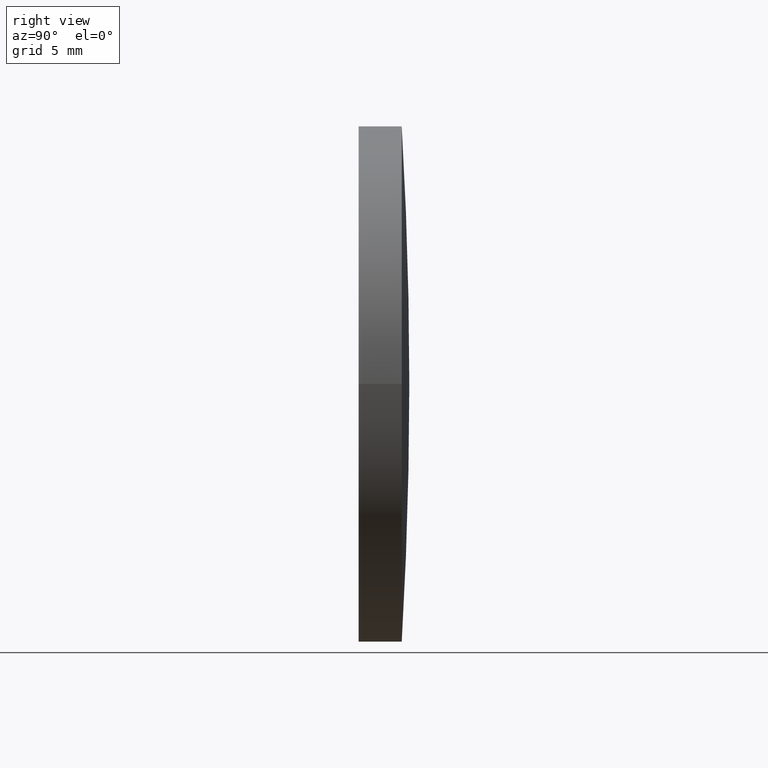
[diagram: clean part render]
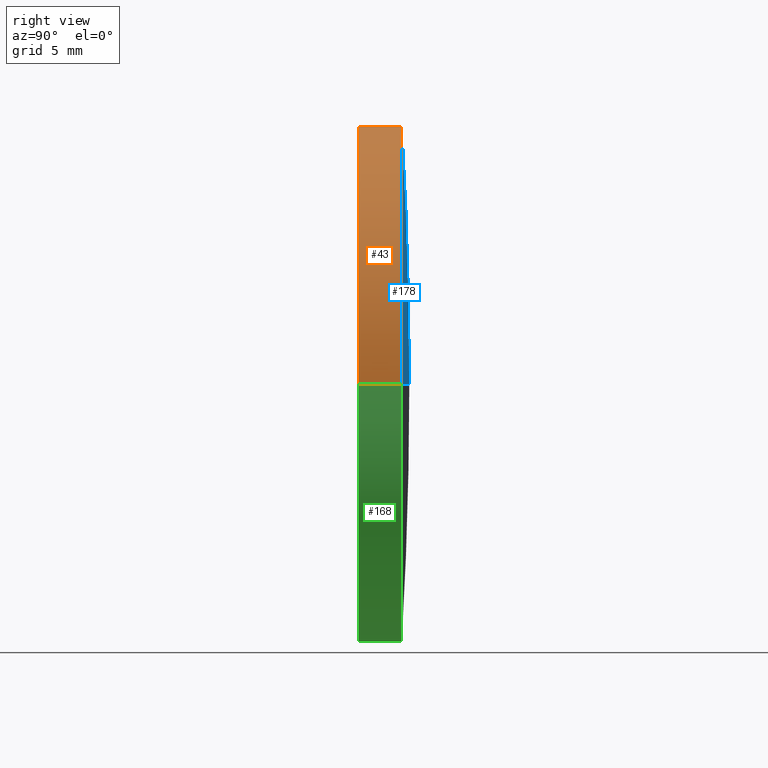
[diagram: same view with three faces highlighted in distinct colors, each labeled with its STEP entity id]
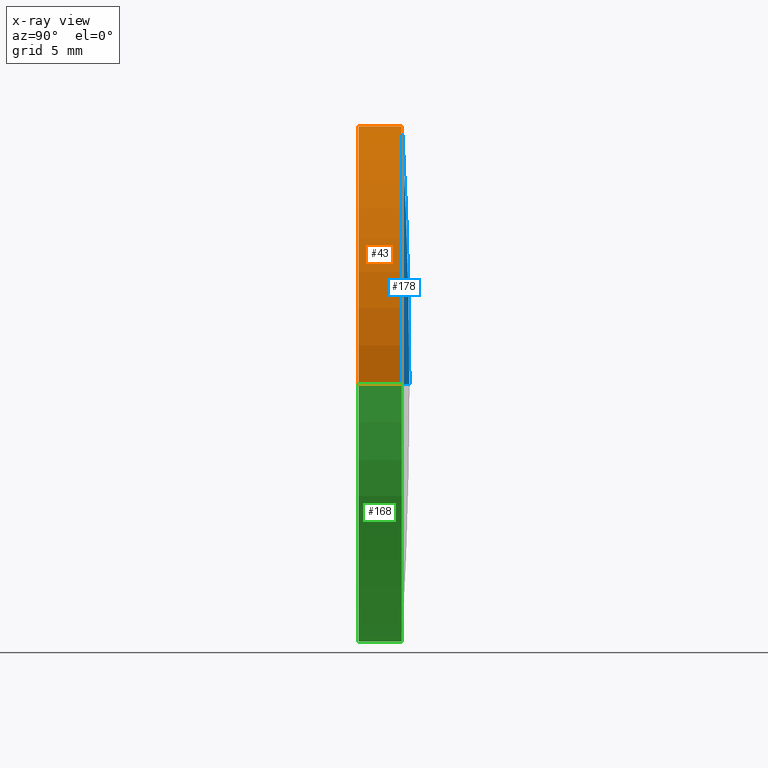
[diagram: x-ray of the same camera — body ghosted, the three highlighted faces saturated]
A machine part, right view with three faces highlighted in distinct colors.
The next image is the same camera in x-ray (body ghosted, the three faces saturated) — at least one of them is partly hidden behind the body in this view.
Their STEP definitions:

[orange] entity #43 — the highlighted cylindrical surface (partial cylindrical patch) has radius 15 mm, axis along (0, 1, -0).
#12 = CARTESIAN_POINT ( 'NONE',  ( 5.265981236333619456E-17, 2.939999999999999947, 0.000000000000000000 ) ) ;
#13 = ORIENTED_EDGE ( 'NONE', *, *, #56, .F. ) ;
#16 = EDGE_CURVE ( 'NONE', #72, #172, #108, .T. ) ;
#24 = EDGE_CURVE ( 'NONE', #152, #117, #91, .T. ) ;
#30 = CARTESIAN_POINT ( 'NONE',  ( 14.99999999999983302, 2.500000000000027534, 1.836970198721009079E-15 ) ) ;
#40 = DIRECTION ( 'NONE',  ( 1.791150080385584967E-17, 1.000000000000000000, -0.000000000000000000 ) ) ;
#43 = ADVANCED_FACE ( 'NONE', ( #102 ), #155, .T. ) ;
#44 = DIRECTION ( 'NONE',  ( -1.000000000000000000, 1.791150080385585583E-17, 0.000000000000000000 ) ) ;
#46 = CARTESIAN_POINT ( 'NONE',  ( 15.00000000000000000, 2.939999999999999503, 1.836970198721029589E-15 ) ) ;
#56 = EDGE_CURVE ( 'NONE', #152, #72, #77, .T. ) ;
#57 = AXIS2_PLACEMENT_3D ( 'NONE', #12, #74, #192 ) ;
#65 = CARTESIAN_POINT ( 'NONE',  ( -15.00000000000000000, -1.899731832913170901E-15, 0.000000000000000000 ) ) ;
#69 = AXIS2_PLACEMENT_3D ( 'NONE', #187, #40, #99 ) ;
#72 = VERTEX_POINT ( 'NONE', #179 ) ;
#74 = DIRECTION ( 'NONE',  ( 1.791150080385584967E-17, 1.000000000000000000, -0.000000000000000000 ) ) ;
#75 = CARTESIAN_POINT ( 'NONE',  ( -15.00000000000000000, 2.940000000000000391, 0.000000000000000000 ) ) ;
#76 = DIRECTION ( 'NONE',  ( 1.791150080385584967E-17, 1.000000000000000000, -0.000000000000000000 ) ) ;
#77 = LINE ( 'NONE', #75, #167 ) ;
#85 = EDGE_LOOP ( 'NONE', ( #189, #173, #124, #13 ) ) ;
#91 = CIRCLE ( 'NONE', #96, 15.00000000000000000 ) ;
#96 = AXIS2_PLACEMENT_3D ( 'NONE', #191, #166, #44 ) ;
#99 = DIRECTION ( 'NONE',  ( -1.000000000000000000, 2.891205793294678696E-17, 0.000000000000000000 ) ) ;
#102 = FACE_OUTER_BOUND ( 'NONE', #85, .T. ) ;
#108 = CIRCLE ( 'NONE', #69, 15.00000000000000000 ) ;
#115 = EDGE_CURVE ( 'NONE', #117, #172, #145, .T. ) ;
#117 = VERTEX_POINT ( 'NONE', #177 ) ;
#124 = ORIENTED_EDGE ( 'NONE', *, *, #16, .F. ) ;
#145 = LINE ( 'NONE', #46, #146 ) ;
#146 = VECTOR ( 'NONE', #76, 1000.000000000000000 ) ;
#147 = DIRECTION ( 'NONE',  ( 1.791150080385584967E-17, 1.000000000000000000, -0.000000000000000000 ) ) ;
#152 = VERTEX_POINT ( 'NONE', #65 ) ;
#155 = CYLINDRICAL_SURFACE ( 'NONE', #57, 15.00000000000000000 ) ;
#166 = DIRECTION ( 'NONE',  ( 1.791150080385584967E-17, 1.000000000000000000, -0.000000000000000000 ) ) ;
#167 = VECTOR ( 'NONE', #147, 1000.000000000000000 ) ;
#172 = VERTEX_POINT ( 'NONE', #30 ) ;
#173 = ORIENTED_EDGE ( 'NONE', *, *, #115, .T. ) ;
#177 = CARTESIAN_POINT ( 'NONE',  ( 15.00000000000000000, -2.437076857028846835E-15, 1.836970198721029589E-15 ) ) ;
#179 = CARTESIAN_POINT ( 'NONE',  ( -14.99999999999983125, 2.500000000000028422, 0.000000000000000000 ) ) ;
#187 = CARTESIAN_POINT ( 'NONE',  ( 4.477875200963958719E-17, 2.499999999999997780, 0.000000000000000000 ) ) ;
#189 = ORIENTED_EDGE ( 'NONE', *, *, #24, .T. ) ;
#191 = CARTESIAN_POINT ( 'NONE',  ( -4.212971753347078429E-32, -2.168404344971008868E-15, 0.000000000000000000 ) ) ;
#192 = DIRECTION ( 'NONE',  ( -1.000000000000000000, 2.891205793294678696E-17, 0.000000000000000000 ) ) ;

[blue] entity #178 — the highlighted toroidal blend (fillet) surface has major radius 0.0668 mm and minor (blend) radius 258.18 mm.
#9 = EDGE_CURVE ( 'NONE', #72, #27, #133, .T. ) ;
#10 = DIRECTION ( 'NONE',  ( -0.000000000000000000, 0.000000000000000000, -1.000000000000000000 ) ) ;
#16 = EDGE_CURVE ( 'NONE', #72, #172, #108, .T. ) ;
#17 = CARTESIAN_POINT ( 'NONE',  ( -4.567201651595187428E-15, -255.2399913514417733, 0.000000000000000000 ) ) ;
#19 = DIRECTION ( 'NONE',  ( -1.224646799147353207E-16, 2.193526212736731115E-33, 1.000000000000000000 ) ) ;
#20 = CIRCLE ( 'NONE', #120, 258.1800000000000068 ) ;
#26 = CARTESIAN_POINT ( 'NONE',  ( 5.265981236333619456E-17, 2.939999999999999947, 0.000000000000000000 ) ) ;
#27 = VERTEX_POINT ( 'NONE', #26 ) ;
#28 = ORIENTED_EDGE ( 'NONE', *, *, #16, .T. ) ;
#30 = CARTESIAN_POINT ( 'NONE',  ( 14.99999999999983302, 2.500000000000027534, 1.836970198721009079E-15 ) ) ;
#38 = ORIENTED_EDGE ( 'NONE', *, *, #188, .T. ) ;
#40 = DIRECTION ( 'NONE',  ( 1.791150080385584967E-17, 1.000000000000000000, -0.000000000000000000 ) ) ;
#41 = AXIS2_PLACEMENT_3D ( 'NONE', #58, #10, #121 ) ;
#48 = FACE_OUTER_BOUND ( 'NONE', #104, .T. ) ;
#58 = CARTESIAN_POINT ( 'NONE',  ( 0.06682641297565267147, -255.2399913514417733, 0.000000000000000000 ) ) ;
#66 = DIRECTION ( 'NONE',  ( -1.000000000000000000, 1.791150080385584967E-17, 0.000000000000000000 ) ) ;
#69 = AXIS2_PLACEMENT_3D ( 'NONE', #187, #40, #99 ) ;
#72 = VERTEX_POINT ( 'NONE', #179 ) ;
#79 = AXIS2_PLACEMENT_3D ( 'NONE', #17, #156, #66 ) ;
#84 = ORIENTED_EDGE ( 'NONE', *, *, #9, .F. ) ;
#99 = DIRECTION ( 'NONE',  ( -1.000000000000000000, 2.891205793294678696E-17, 0.000000000000000000 ) ) ;
#104 = EDGE_LOOP ( 'NONE', ( #28, #38, #84 ) ) ;
#108 = CIRCLE ( 'NONE', #69, 15.00000000000000000 ) ;
#110 = CARTESIAN_POINT ( 'NONE',  ( -0.06682641297566180305, -255.2399913514417733, -8.183875274913779091E-18 ) ) ;
#120 = AXIS2_PLACEMENT_3D ( 'NONE', #110, #19, #195 ) ;
#121 = DIRECTION ( 'NONE',  ( -1.000000000000000000, 0.000000000000000000, 0.000000000000000000 ) ) ;
#133 = CIRCLE ( 'NONE', #41, 258.1800000000000068 ) ;
#141 = TOROIDAL_SURFACE ( 'NONE', #79, -0.06682641297565723726, 258.1800000000000068 ) ;
#156 = DIRECTION ( 'NONE',  ( 1.791150080385584967E-17, 1.000000000000000000, -0.000000000000000000 ) ) ;
#172 = VERTEX_POINT ( 'NONE', #30 ) ;
#178 = ADVANCED_FACE ( 'NONE', ( #48 ), #141, .T. ) ;
#179 = CARTESIAN_POINT ( 'NONE',  ( -14.99999999999983125, 2.500000000000028422, 0.000000000000000000 ) ) ;
#187 = CARTESIAN_POINT ( 'NONE',  ( 4.477875200963958719E-17, 2.499999999999997780, 0.000000000000000000 ) ) ;
#188 = EDGE_CURVE ( 'NONE', #172, #27, #20, .T. ) ;
#195 = DIRECTION ( 'NONE',  ( 1.000000000000000000, 0.000000000000000000, 1.224646799147353207E-16 ) ) ;

[green] entity #168 — the highlighted cylindrical surface (partial cylindrical patch) has radius 15 mm, axis along (0, 1, -0).
#1 = ORIENTED_EDGE ( 'NONE', *, *, #115, .F. ) ;
#5 = CARTESIAN_POINT ( 'NONE',  ( 5.265981236333619456E-17, 2.939999999999999947, 0.000000000000000000 ) ) ;
#14 = DIRECTION ( 'NONE',  ( 1.791150080385584967E-17, 1.000000000000000000, -0.000000000000000000 ) ) ;
#29 = CYLINDRICAL_SURFACE ( 'NONE', #190, 15.00000000000000000 ) ;
#30 = CARTESIAN_POINT ( 'NONE',  ( 14.99999999999983302, 2.500000000000027534, 1.836970198721009079E-15 ) ) ;
#46 = CARTESIAN_POINT ( 'NONE',  ( 15.00000000000000000, 2.939999999999999503, 1.836970198721029589E-15 ) ) ;
#54 = CIRCLE ( 'NONE', #62, 15.00000000000000000 ) ;
#55 = ORIENTED_EDGE ( 'NONE', *, *, #154, .T. ) ;
#56 = EDGE_CURVE ( 'NONE', #152, #72, #77, .T. ) ;
#62 = AXIS2_PLACEMENT_3D ( 'NONE', #64, #14, #107 ) ;
#64 = CARTESIAN_POINT ( 'NONE',  ( 4.477875200963958719E-17, 2.499999999999997780, 0.000000000000000000 ) ) ;
#65 = CARTESIAN_POINT ( 'NONE',  ( -15.00000000000000000, -1.899731832913170901E-15, 0.000000000000000000 ) ) ;
#70 = CIRCLE ( 'NONE', #182, 15.00000000000000000 ) ;
#72 = VERTEX_POINT ( 'NONE', #179 ) ;
#75 = CARTESIAN_POINT ( 'NONE',  ( -15.00000000000000000, 2.940000000000000391, 0.000000000000000000 ) ) ;
#76 = DIRECTION ( 'NONE',  ( 1.791150080385584967E-17, 1.000000000000000000, -0.000000000000000000 ) ) ;
#77 = LINE ( 'NONE', #75, #167 ) ;
#92 = DIRECTION ( 'NONE',  ( -1.000000000000000000, 1.791150080385585583E-17, 0.000000000000000000 ) ) ;
#93 = EDGE_CURVE ( 'NONE', #172, #72, #54, .T. ) ;
#105 = DIRECTION ( 'NONE',  ( 1.791150080385584967E-17, 1.000000000000000000, -0.000000000000000000 ) ) ;
#107 = DIRECTION ( 'NONE',  ( -1.000000000000000000, 2.891205793294678696E-17, 0.000000000000000000 ) ) ;
#111 = CARTESIAN_POINT ( 'NONE',  ( -4.212971753347078429E-32, -2.168404344971008868E-15, 0.000000000000000000 ) ) ;
#115 = EDGE_CURVE ( 'NONE', #117, #172, #145, .T. ) ;
#117 = VERTEX_POINT ( 'NONE', #177 ) ;
#127 = DIRECTION ( 'NONE',  ( 1.791150080385584967E-17, 1.000000000000000000, -0.000000000000000000 ) ) ;
#137 = ORIENTED_EDGE ( 'NONE', *, *, #93, .F. ) ;
#145 = LINE ( 'NONE', #46, #146 ) ;
#146 = VECTOR ( 'NONE', #76, 1000.000000000000000 ) ;
#147 = DIRECTION ( 'NONE',  ( 1.791150080385584967E-17, 1.000000000000000000, -0.000000000000000000 ) ) ;
#152 = VERTEX_POINT ( 'NONE', #65 ) ;
#154 = EDGE_CURVE ( 'NONE', #117, #152, #70, .T. ) ;
#161 = FACE_OUTER_BOUND ( 'NONE', #193, .T. ) ;
#165 = ORIENTED_EDGE ( 'NONE', *, *, #56, .T. ) ;
#167 = VECTOR ( 'NONE', #147, 1000.000000000000000 ) ;
#168 = ADVANCED_FACE ( 'NONE', ( #161 ), #29, .T. ) ;
#172 = VERTEX_POINT ( 'NONE', #30 ) ;
#175 = DIRECTION ( 'NONE',  ( -1.000000000000000000, 2.891205793294678696E-17, 0.000000000000000000 ) ) ;
#177 = CARTESIAN_POINT ( 'NONE',  ( 15.00000000000000000, -2.437076857028846835E-15, 1.836970198721029589E-15 ) ) ;
#179 = CARTESIAN_POINT ( 'NONE',  ( -14.99999999999983125, 2.500000000000028422, 0.000000000000000000 ) ) ;
#182 = AXIS2_PLACEMENT_3D ( 'NONE', #111, #127, #92 ) ;
#190 = AXIS2_PLACEMENT_3D ( 'NONE', #5, #105, #175 ) ;
#193 = EDGE_LOOP ( 'NONE', ( #1, #55, #165, #137 ) ) ;